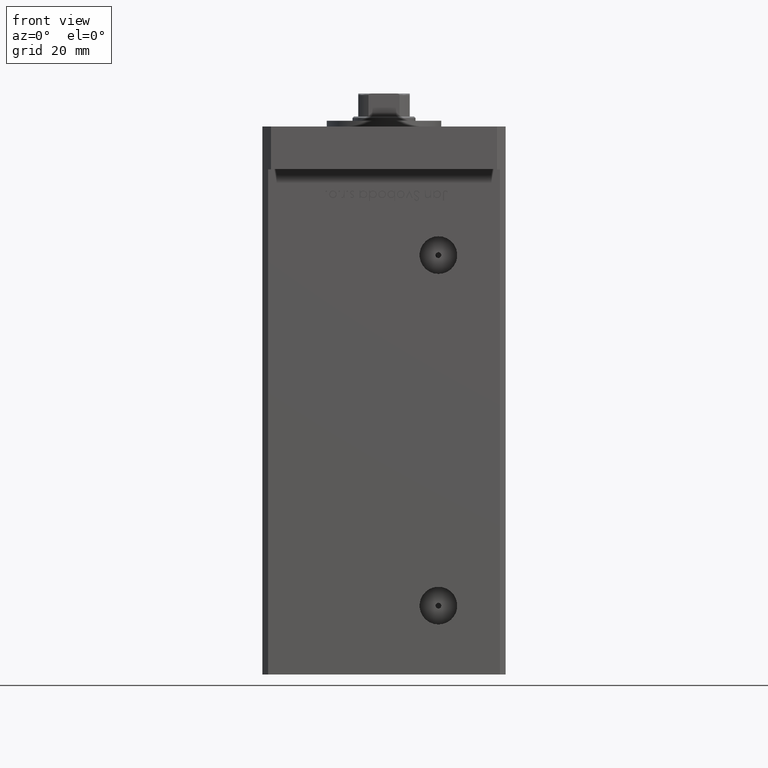
[diagram: clean part render]
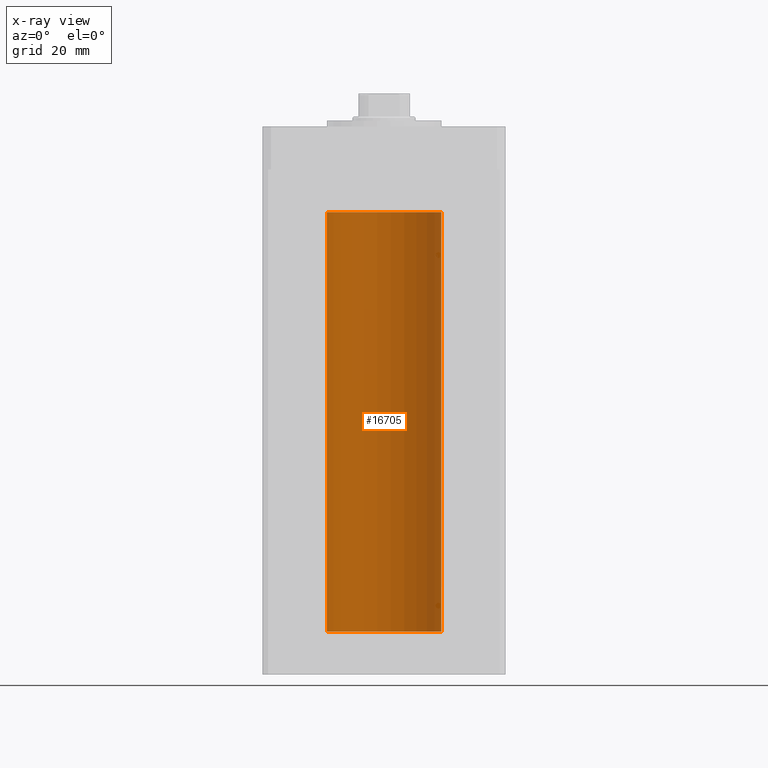
[diagram: x-ray — body ghosted, one internal face saturated and labeled with its STEP entity id]
A machine part, front view, then the same camera in x-ray: the body is ghosted and one INTERNAL B-rep face — a face not visible from any outside direction — is saturated and labeled: STEP entity #16705.
In plain terms, the highlighted cylindrical surface (partial cylindrical patch) has radius 20 mm, axis along (-0, -0, -1).
Its self-contained STEP definition (entity closure, byte-faithful):
#1572 = CARTESIAN_POINT ( 'NONE',  ( 0.000000000000000000, 0.000000000000000000, 146.5000000000000000 ) ) ;
#4631 = LINE ( 'NONE', #33136, #33564 ) ;
#5255 = VECTOR ( 'NONE', #47389, 1000.000000000000000 ) ;
#6598 = CARTESIAN_POINT ( 'NONE',  ( 0.000000000000000000, 0.000000000000000000, 0.000000000000000000 ) ) ;
#8646 = VERTEX_POINT ( 'NONE', #44403 ) ;
#9691 = ORIENTED_EDGE ( 'NONE', *, *, #12273, .F. ) ;
#10788 = DIRECTION ( 'NONE',  ( -0.000000000000000000, -0.000000000000000000, -1.000000000000000000 ) ) ;
#10873 = VERTEX_POINT ( 'NONE', #25874 ) ;
#11388 = EDGE_LOOP ( 'NONE', ( #39298, #13244, #48135, #9691 ) ) ;
#12162 = AXIS2_PLACEMENT_3D ( 'NONE', #14880, #10788, #27361 ) ;
#12273 = EDGE_CURVE ( 'NONE', #15865, #10873, #42327, .T. ) ;
#13244 = ORIENTED_EDGE ( 'NONE', *, *, #13860, .T. ) ;
#13860 = EDGE_CURVE ( 'NONE', #8646, #49073, #34589, .T. ) ;
#14880 = CARTESIAN_POINT ( 'NONE',  ( 0.000000000000000000, 0.000000000000000000, 146.5000000000000000 ) ) ;
#15865 = VERTEX_POINT ( 'NONE', #50958 ) ;
#16705 = ADVANCED_FACE ( 'NONE', ( #23027 ), #26551, .F. ) ;
#19375 = DIRECTION ( 'NONE',  ( -0.000000000000000000, 0.000000000000000000, 1.000000000000000000 ) ) ;
#23027 = FACE_OUTER_BOUND ( 'NONE', #11388, .T. ) ;
#25874 = CARTESIAN_POINT ( 'NONE',  ( -20.00000000000000000, 0.000000000000000000, 0.000000000000000000 ) ) ;
#26551 = CYLINDRICAL_SURFACE ( 'NONE', #12162, 20.00000000000000000 ) ;
#27332 = CARTESIAN_POINT ( 'NONE',  ( -20.00000000000000000, 0.000000000000000000, 146.5000000000000000 ) ) ;
#27361 = DIRECTION ( 'NONE',  ( -1.000000000000000000, 0.000000000000000000, 0.000000000000000000 ) ) ;
#29810 = DIRECTION ( 'NONE',  ( -0.000000000000000000, 0.000000000000000000, 1.000000000000000000 ) ) ;
#31153 = EDGE_CURVE ( 'NONE', #8646, #15865, #4631, .T. ) ;
#31665 = LINE ( 'NONE', #27332, #5255 ) ;
#33136 = CARTESIAN_POINT ( 'NONE',  ( 20.00000000000000000, 2.449293598294706513E-15, 146.5000000000000000 ) ) ;
#33564 = VECTOR ( 'NONE', #45593, 1000.000000000000000 ) ;
#34589 = CIRCLE ( 'NONE', #43250, 20.00000000000000000 ) ;
#35908 = DIRECTION ( 'NONE',  ( 1.000000000000000000, 0.000000000000000000, 0.000000000000000000 ) ) ;
#37266 = CARTESIAN_POINT ( 'NONE',  ( -20.00000000000000000, 0.000000000000000000, 146.5000000000000000 ) ) ;
#39005 = DIRECTION ( 'NONE',  ( 1.000000000000000000, 0.000000000000000000, 0.000000000000000000 ) ) ;
#39298 = ORIENTED_EDGE ( 'NONE', *, *, #31153, .F. ) ;
#40697 = EDGE_CURVE ( 'NONE', #49073, #10873, #31665, .T. ) ;
#42327 = CIRCLE ( 'NONE', #50223, 20.00000000000000000 ) ;
#43250 = AXIS2_PLACEMENT_3D ( 'NONE', #1572, #29810, #39005 ) ;
#44403 = CARTESIAN_POINT ( 'NONE',  ( 20.00000000000000000, 2.449293598294706513E-15, 146.5000000000000000 ) ) ;
#45593 = DIRECTION ( 'NONE',  ( -0.000000000000000000, -0.000000000000000000, -1.000000000000000000 ) ) ;
#47389 = DIRECTION ( 'NONE',  ( -0.000000000000000000, -0.000000000000000000, -1.000000000000000000 ) ) ;
#48135 = ORIENTED_EDGE ( 'NONE', *, *, #40697, .T. ) ;
#49073 = VERTEX_POINT ( 'NONE', #37266 ) ;
#50223 = AXIS2_PLACEMENT_3D ( 'NONE', #6598, #19375, #35908 ) ;
#50958 = CARTESIAN_POINT ( 'NONE',  ( 20.00000000000000000, 2.449293598294706513E-15, 0.000000000000000000 ) ) ;